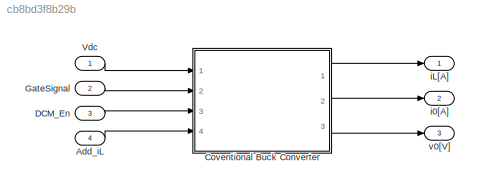
MODEL slx_cb8bd3f8b29b
KIND model
CONFIG AbsTol = auto
CONFIG EnableMultiTasking = off
CONFIG FixedStep = Ts
CONFIG MaxStep = auto
CONFIG MinStep = auto
CONFIG PostLoadFcn = , if any(exist('dsrtsu_mdlpostloadfcn', 'file') == [2, 3, 6]), try dsrtsu_mdlpostloadfcn('Execute', bdroot); catch fprintf('Error in PostLoadFcn (dsrtsu_mdlpostloadfcn) for model "%s":\n %s\n', bdroot, lasterr); end, end, \n
CONFIG RelTol = 1e-3
CONFIG SampleTimeConstraint = Unconstrained
CONFIG Solver = FixedStepAuto
CONFIG SolverName = FixedStepAuto
CONFIG StartTime = 0.0
CONFIG StopTime = 1e-3
BLOCK [Inport] Add_iL
  IconDisplay = Port number
  Port = 4
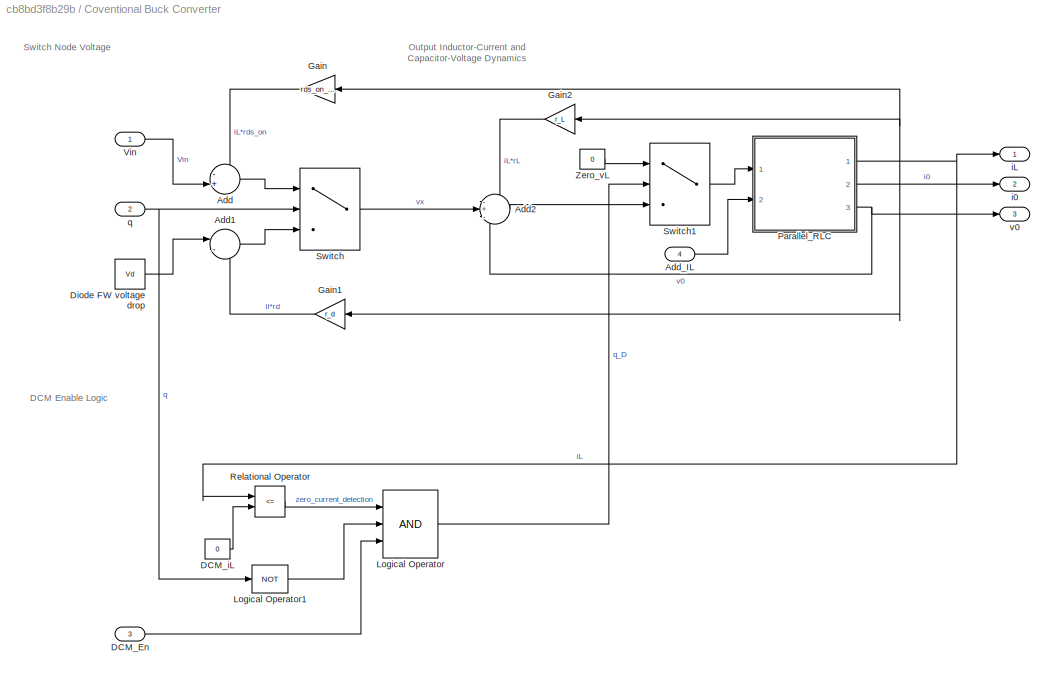
BLOCK [SubSystem] Coventional Buck Converter
  Ports = [4, 3]
  RequestExecContextInheritance = off
  Variant = off
BLOCK [Sum] Coventional Buck Converter/Add
  IconShape = round
  InputSameDT = off
  Inputs = -+|
  OutDataTypeStr = Inherit: Inherit via internal rule
  Ports = [2, 1]
  SaturateOnIntegerOverflow = off
BLOCK [Sum] Coventional Buck Converter/Add1
  IconShape = round
  InputSameDT = off
  Inputs = |--
  OutDataTypeStr = Inherit: Inherit via internal rule
  Ports = [2, 1]
  SaturateOnIntegerOverflow = off
BLOCK [Sum] Coventional Buck Converter/Add2
  IconShape = round
  InputSameDT = off
  Inputs = -+-
  OutDataTypeStr = Inherit: Inherit via internal rule
  Ports = [3, 1]
  SaturateOnIntegerOverflow = off
BLOCK [Inport] Coventional Buck Converter/Add_IL
  IconDisplay = Port number
  Port = 4
BLOCK [Inport] Coventional Buck Converter/DCM_En
  IconDisplay = Port number
  Port = 3
BLOCK [Constant] Coventional Buck Converter/DCM_iL
  Value = 0
BLOCK [Constant] Coventional Buck Converter/Diode FW voltage drop
  Value = Vd
BLOCK [Gain] Coventional Buck Converter/Gain
  Gain = rds_on_sw1
  OutDataTypeStr = Inherit: Inherit via internal rule
  ParamDataTypeStr = Inherit: Inherit via internal rule
  SaturateOnIntegerOverflow = off
BLOCK [Gain] Coventional Buck Converter/Gain1
  Gain = r_d
  OutDataTypeStr = Inherit: Inherit via internal rule
  ParamDataTypeStr = Inherit: Inherit via internal rule
  SaturateOnIntegerOverflow = off
BLOCK [Gain] Coventional Buck Converter/Gain2
  Gain = r_L
  OutDataTypeStr = Inherit: Inherit via internal rule
  ParamDataTypeStr = Inherit: Inherit via internal rule
  SaturateOnIntegerOverflow = off
BLOCK [Logic] Coventional Buck Converter/Logical Operator
  AllPortsSameDT = off
  IconShape = distinctive
  Inputs = 3
  OutDataTypeStr = boolean
  Ports = [3, 1]
BLOCK [Logic] Coventional Buck Converter/Logical Operator1
  AllPortsSameDT = off
  IconShape = distinctive
  Inputs = 3
  Operator = NOT
  OutDataTypeStr = boolean
  Ports = [1, 1]
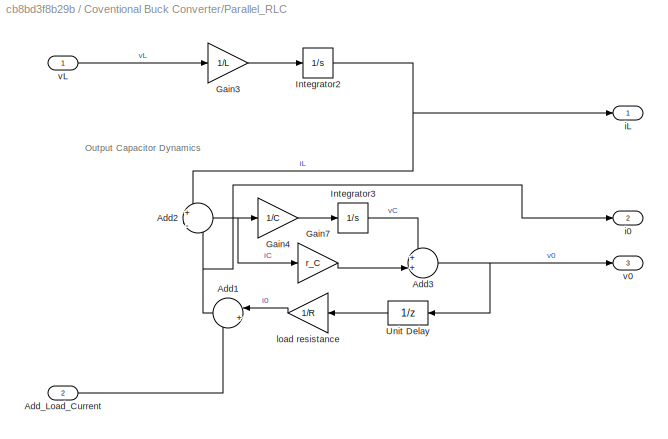
BLOCK [SubSystem] Coventional Buck Converter/Parallel_RLC
  Ports = [2, 3]
  RequestExecContextInheritance = off
  Variant = off
BLOCK [Sum] Coventional Buck Converter/Parallel_RLC/Add1
  IconShape = round
  InputSameDT = off
  Inputs = |++
  OutDataTypeStr = Inherit: Inherit via internal rule
  Ports = [2, 1]
  SaturateOnIntegerOverflow = off
BLOCK [Sum] Coventional Buck Converter/Parallel_RLC/Add2
  IconShape = round
  InputSameDT = off
  Inputs = +|-
  OutDataTypeStr = Inherit: Inherit via internal rule
  Ports = [2, 1]
  SaturateOnIntegerOverflow = off
BLOCK [Sum] Coventional Buck Converter/Parallel_RLC/Add3
  IconShape = round
  InputSameDT = off
  Inputs = ++|
  OutDataTypeStr = Inherit: Inherit via internal rule
  Ports = [2, 1]
  SaturateOnIntegerOverflow = off
BLOCK [Inport] Coventional Buck Converter/Parallel_RLC/Add_Load_Current
  IconDisplay = Port number
  Port = 2
BLOCK [Gain] Coventional Buck Converter/Parallel_RLC/Gain3
  Gain = 1/L
  OutDataTypeStr = Inherit: Inherit via internal rule
  ParamDataTypeStr = Inherit: Inherit via internal rule
  SaturateOnIntegerOverflow = off
BLOCK [Gain] Coventional Buck Converter/Parallel_RLC/Gain4
  Gain = 1/C
  OutDataTypeStr = Inherit: Inherit via internal rule
  ParamDataTypeStr = Inherit: Inherit via internal rule
  SaturateOnIntegerOverflow = off
BLOCK [Gain] Coventional Buck Converter/Parallel_RLC/Gain7
  Gain = r_C
  OutDataTypeStr = Inherit: Inherit via internal rule
  ParamDataTypeStr = Inherit: Inherit via internal rule
  SaturateOnIntegerOverflow = off
BLOCK [Integrator] Coventional Buck Converter/Parallel_RLC/Integrator2
  InitialCondition = i_L_init
  Ports = [1, 1]
BLOCK [Integrator] Coventional Buck Converter/Parallel_RLC/Integrator3
  InitialCondition = v_C_init
  Ports = [1, 1]
BLOCK [UnitDelay] Coventional Buck Converter/Parallel_RLC/Unit Delay
  InputProcessing = Elements as channels (sample based)
  SampleTime = -1
BLOCK [Outport] Coventional Buck Converter/Parallel_RLC/i0
  IconDisplay = Port number
  Port = 2
BLOCK [Outport] Coventional Buck Converter/Parallel_RLC/iL
  IconDisplay = Port number
BLOCK [Gain] Coventional Buck Converter/Parallel_RLC/load resistance
  Gain = 1/R
  OutDataTypeStr = Inherit: Inherit via internal rule
  ParamDataTypeStr = Inherit: Inherit via internal rule
  SaturateOnIntegerOverflow = off
BLOCK [Outport] Coventional Buck Converter/Parallel_RLC/v0
  IconDisplay = Port number
  Port = 3
BLOCK [Inport] Coventional Buck Converter/Parallel_RLC/vL
  IconDisplay = Port number
BLOCK [RelationalOperator] Coventional Buck Converter/Relational Operator
  InputSameDT = off
  Operator = <=
  OutDataTypeStr = boolean
  Ports = [2, 1]
  RndMeth = Simplest
BLOCK [Switch] Coventional Buck Converter/Switch
  Criteria = u2 > Threshold
  InputSameDT = off
  SaturateOnIntegerOverflow = off
  Threshold = 0.5
BLOCK [Switch] Coventional Buck Converter/Switch1
  Criteria = u2 > Threshold
  InputSameDT = off
  SaturateOnIntegerOverflow = off
  Threshold = 0.5
BLOCK [Inport] Coventional Buck Converter/Vin
  IconDisplay = Port number
BLOCK [Constant] Coventional Buck Converter/Zero_vL
  Value = 0
BLOCK [Outport] Coventional Buck Converter/i0
  IconDisplay = Port number
  Port = 2
BLOCK [Outport] Coventional Buck Converter/iL
  IconDisplay = Port number
BLOCK [Inport] Coventional Buck Converter/q
  IconDisplay = Port number
  Port = 2
BLOCK [Outport] Coventional Buck Converter/v0
  IconDisplay = Port number
  Port = 3
BLOCK [Inport] DCM_En
  IconDisplay = Port number
  Port = 3
BLOCK [Inport] GateSignal
  IconDisplay = Port number
  OutDataTypeStr = boolean
  Port = 2
BLOCK [Inport] Vdc
  IconDisplay = Port number
BLOCK [Outport] i0[A]
  IconDisplay = Port number
  Port = 2
BLOCK [Outport] iL[A]
  IconDisplay = Port number
BLOCK [Outport] v0[V]
  IconDisplay = Port number
  Port = 3
ANNOTATION Coventional Buck Converter: DCM Enable Logic
ANNOTATION Coventional Buck Converter: Output Inductor-Current and Capacitor-Voltage Dynamics
ANNOTATION Coventional Buck Converter: Switch Node Voltage
ANNOTATION Coventional Buck Converter/Parallel_RLC: Output Capacitor Dynamics
LINE Add_iL:1 -> Coventional Buck Converter:4
LINE Coventional Buck Converter/Add1:1 -> Coventional Buck Converter/Switch:3
LINE Coventional Buck Converter/Add2:1 -> Coventional Buck Converter/Switch1:3
LINE Coventional Buck Converter/Add:1 -> Coventional Buck Converter/Switch:1
LINE Coventional Buck Converter/Add_IL:1 -> Coventional Buck Converter/Parallel_RLC:2
LINE Coventional Buck Converter/DCM_En:1 -> Coventional Buck Converter/Logical Operator:3
LINE Coventional Buck Converter/DCM_iL:1 -> Coventional Buck Converter/Relational Operator:2
LINE Coventional Buck Converter/Diode FW voltage drop:1 -> Coventional Buck Converter/Add1:1
LINE Coventional Buck Converter/Gain1:1 -> Coventional Buck Converter/Add1:2
LINE Coventional Buck Converter/Gain2:1 -> Coventional Buck Converter/Add2:1
LINE Coventional Buck Converter/Gain:1 -> Coventional Buck Converter/Add:1
LINE Coventional Buck Converter/Logical Operator1:1 -> Coventional Buck Converter/Logical Operator:2
LINE Coventional Buck Converter/Logical Operator:1 -> Coventional Buck Converter/Switch1:2
NET Coventional Buck Converter/Parallel_RLC/Add1:1 -> Coventional Buck Converter/Parallel_RLC/Add2:2, Coventional Buck Converter/Parallel_RLC/i0:1
NET Coventional Buck Converter/Parallel_RLC/Add2:1 -> Coventional Buck Converter/Parallel_RLC/Gain4:1, Coventional Buck Converter/Parallel_RLC/Gain7:1
NET Coventional Buck Converter/Parallel_RLC/Add3:1 -> Coventional Buck Converter/Parallel_RLC/Unit Delay:1, Coventional Buck Converter/Parallel_RLC/v0:1
LINE Coventional Buck Converter/Parallel_RLC/Add_Load_Current:1 -> Coventional Buck Converter/Parallel_RLC/Add1:2
LINE Coventional Buck Converter/Parallel_RLC/Gain3:1 -> Coventional Buck Converter/Parallel_RLC/Integrator2:1
LINE Coventional Buck Converter/Parallel_RLC/Gain4:1 -> Coventional Buck Converter/Parallel_RLC/Integrator3:1
LINE Coventional Buck Converter/Parallel_RLC/Gain7:1 -> Coventional Buck Converter/Parallel_RLC/Add3:2
NET Coventional Buck Converter/Parallel_RLC/Integrator2:1 -> Coventional Buck Converter/Parallel_RLC/Add2:1, Coventional Buck Converter/Parallel_RLC/iL:1
LINE Coventional Buck Converter/Parallel_RLC/Integrator3:1 -> Coventional Buck Converter/Parallel_RLC/Add3:1
LINE Coventional Buck Converter/Parallel_RLC/Unit Delay:1 -> Coventional Buck Converter/Parallel_RLC/load resistance:1
LINE Coventional Buck Converter/Parallel_RLC/load resistance:1 -> Coventional Buck Converter/Parallel_RLC/Add1:1
LINE Coventional Buck Converter/Parallel_RLC/vL:1 -> Coventional Buck Converter/Parallel_RLC/Gain3:1
NET Coventional Buck Converter/Parallel_RLC:1 -> Coventional Buck Converter/Gain1:1, Coventional Buck Converter/Gain2:1, Coventional Buck Converter/Gain:1, Coventional Buck Converter/Relational Operator:1, Coventional Buck Converter/iL:1
LINE Coventional Buck Converter/Parallel_RLC:2 -> Coventional Buck Converter/i0:1
NET Coventional Buck Converter/Parallel_RLC:3 -> Coventional Buck Converter/Add2:3, Coventional Buck Converter/v0:1
LINE Coventional Buck Converter/Relational Operator:1 -> Coventional Buck Converter/Logical Operator:1
LINE Coventional Buck Converter/Switch1:1 -> Coventional Buck Converter/Parallel_RLC:1
LINE Coventional Buck Converter/Switch:1 -> Coventional Buck Converter/Add2:2
LINE Coventional Buck Converter/Vin:1 -> Coventional Buck Converter/Add:2
LINE Coventional Buck Converter/Zero_vL:1 -> Coventional Buck Converter/Switch1:1
NET Coventional Buck Converter/q:1 -> Coventional Buck Converter/Logical Operator1:1, Coventional Buck Converter/Switch:2
LINE Coventional Buck Converter:1 -> iL[A]:1
LINE Coventional Buck Converter:2 -> i0[A]:1
LINE Coventional Buck Converter:3 -> v0[V]:1
LINE DCM_En:1 -> Coventional Buck Converter:3
LINE GateSignal:1 -> Coventional Buck Converter:2
LINE Vdc:1 -> Coventional Buck Converter:1
note: NET lines group one-source signal fan-out (src -> all destinations, sorted); 1:1 wires keep LINE
